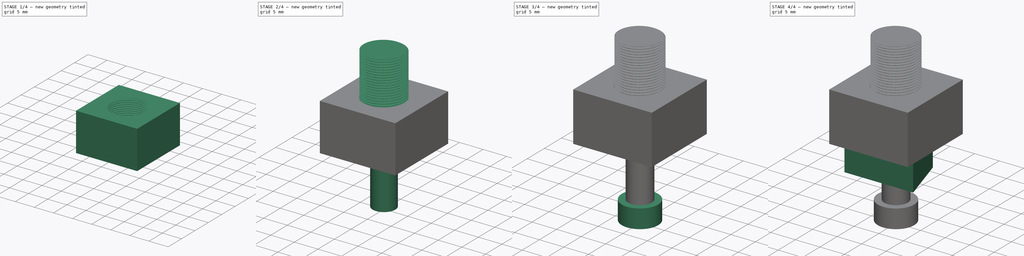
[diagram: build sequence overview — one tinted view per stage of 4, left to right]
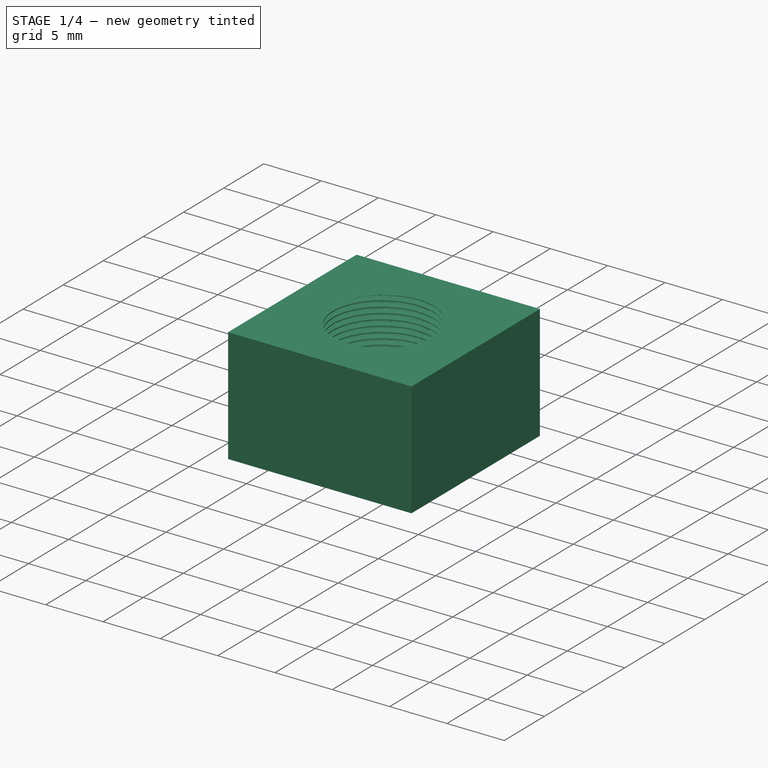
[diagram: stage 1 of 4 — iso view after this stage's code; geometry added in this stage tinted green]
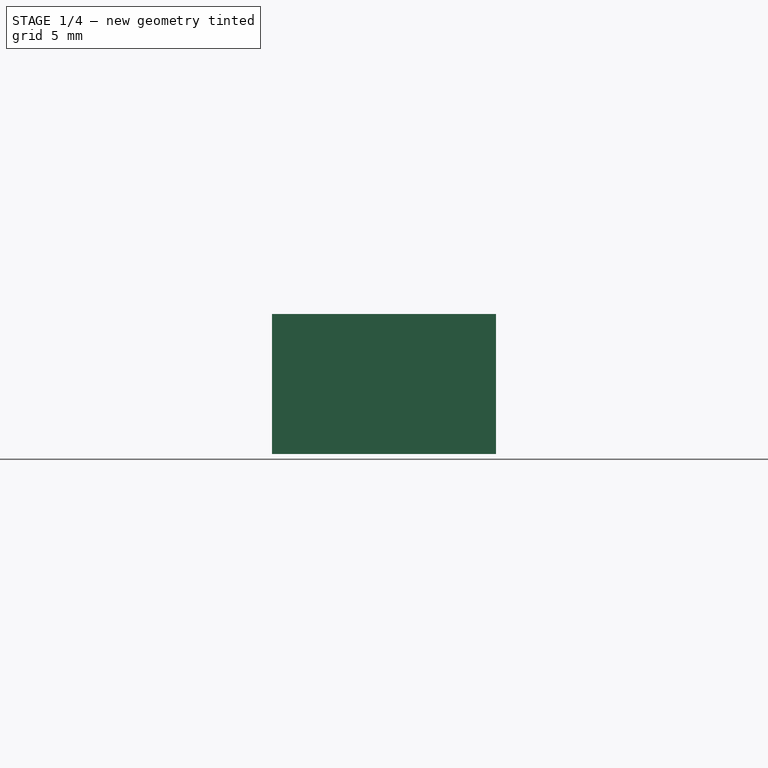
[diagram: stage 1 of 4 — front view after this stage's code; geometry added in this stage tinted green]
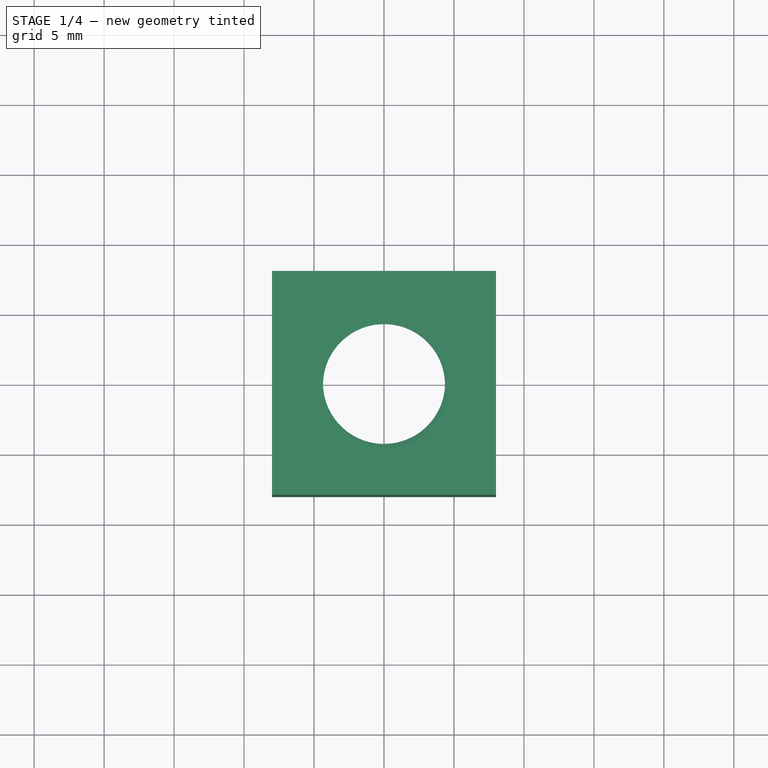
[diagram: stage 1 of 4 — top view after this stage's code; geometry added in this stage tinted green]
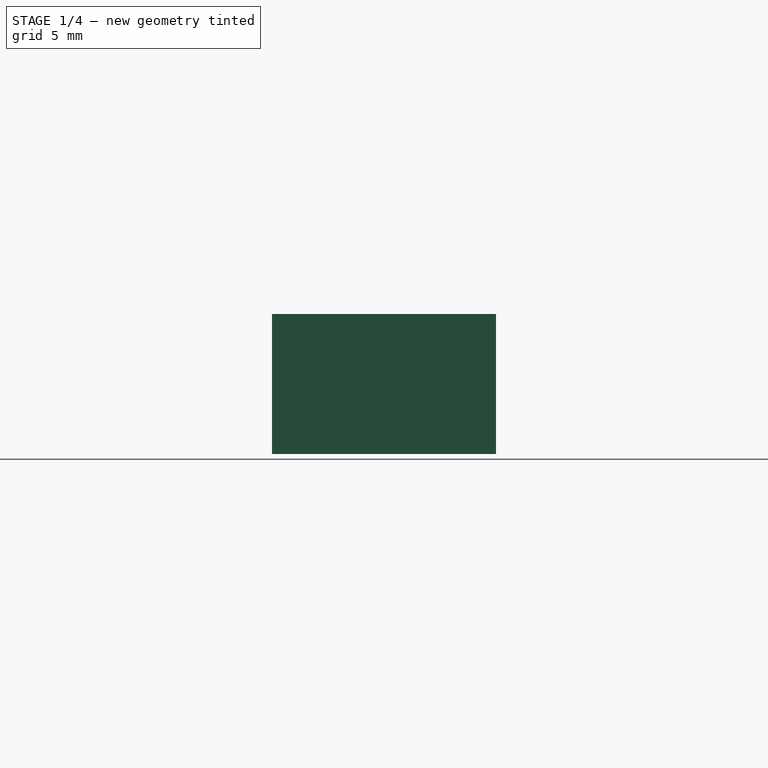
[diagram: stage 1 of 4 — right view after this stage's code; geometry added in this stage tinted green]
FCSTD DOCUMENT  (FreeCAD 2022.111R28429 (Git))
Label: E2 experiment
License: All rights reserved
LicenseURL: http://en.wikipedia.org/wiki/All_rights_reserved
objects: Sketcher::SketchObject×4, PartDesign::Pad×4, PartDesign::Body×2, Part::Part2DObjectPython×2, Part::Helix×2, Part::Sweep×2, PartDesign::Mirrored×1, PartDesign::FeatureBase×1, PartDesign::Chamfer×1, Part::Box×1, Part::Cut×1
note: 34 computed .brp shape members not serialized (recipe doc carries the construction recipe); baked Part::Feature solids carry a one-line shape summary decoded from their .brp

FEATURE [PartDesign::Body] Body001
  AutoGroupSolids = false
  BaseFeature = -> Sweep
  ExportMode = 0
  Group = -> [BaseFeature,Sketch005,Pad002,Sketch006,Pad003,Chamfer]
  Origin = -> Origin001
  Placement = pos=(-45,0,0) rot=(0,0,1;0rad)
  Tip = -> Chamfer
  TreeRank = 50
  _ExportChildren = -> [BaseFeature,Pad002,Pad003,Chamfer]
  _GroupVersion = 1
FEATURE [Part::Box] Box  label="Cube"
  AttacherType = Attacher::AttachEngine3D
  Height = 10
  Length = 16
  Placement = pos=(-8,-8,1.1) rot=(0,0,1;0rad)
  TreeRank = 70
  Width = 16
FEATURE [Part::Part2DObjectPython] VThreadProfile001  # Draft 2D object (typed FeaturePython)
  Area = 63.5134
  Closed = true
  Continuity = C3
  Instructions = Expand this with the ... button to view instructions | Sweep this object along a helix of the same pitch to produce your thread. | It is recommended to make the helix in the ThreadProfile workbench. | If there is an active Body the ThreadProfile object will be put into it.,If not it can be dragged and dropped into the body later. | If there is an active Body when the helix is made there will be made a ShapeBinder for it | For internal threads you will need to cut the Sweep object out of a cylinder, or if using Part Design sweep it as a Subtractive Pipe. | Always use Frenet mode | I have provided some presets, but it is possible there could be some errors.  Double check for mission critical applications. | Also, the tolerances might be different from what you wish to have.  I believe the internal minor diameters are all minimum and the external are all maximum.
  InternalOrExternal = 0
  MakeFace = true
  MinorDiameter = 8.75
  Parameterization = 1
  Pitch = 0.5
  Points = (719) [(4.37483,0.0382317,0),(4.37433,0.0764605,0),(4.3735,0.114683,0),(4.37233,0.152898,0),(4.37082,0.1911,0),(4.36899,0.229288,0),(4.36682,0.267458,0),+712 more]
  Presets = 0
  Quality = 1
  ThreadCount = 30
  TreeRank = 57
  Version = 1.69
  external_data = [-0.00235387,-0.00461052,-0.00677828,-0.00886428,-0.0108747,-0.0128149,-0.0146895,-0.0165028,-0.0182584,-0.0199597,-0.0216095,-0.0232106,-0.0247653,-0.0262759,-0.0277444,-0.0291725,-0.0305621,-0.0319145,-0.0332313,-0.0345138,-0.0357632,+698 more]
  internal_data = [0,0,0,0,0,0,0,0,0,0,0,0,0,0,0,0,0,0,0,0,0,0,0,0,0,0,0,0,0,0,0,0,0,0,0,0,0,0,0,0,0,0,0,0,0,0,0,0,0,0,0,0,0,0,0,0,0,0,0,0,0,0,0,0,0,0,0,0,0,0,0,0,0,0,0,0,0,0,0,0,0,0,0,0,0,0,0,0,0,0,0,0,0,0,0,0,0,0,0,0,0,0,0,0,0,0,0,0,0,0,0,0,0,0,0,0,0,0,0,0,+599 more]
  preset_names = <blob: 3959 chars omitted>
  presets_data = [0,0,0,2.20878,24.1173,24.6888,0.25,0.693,0.729,0.25,0.793,0.829,0.25,0.893,0.929,0.3,1.032,1.075,0.35,1.171,1.221,0.35,1.371,1.421,0.4,1.509,1.567,0.45,1.648,1.713,0.45,1.948,2.013,0.5,2.387,2.459,0.6,2.764,2.85,0.7,3.141,3.242,0.75,3.58,+712 more]
FEATURE [Part::Helix] Helix001
  Angle = 0
  AttacherType = Attacher::AttachEngine3D
  Height = 15
  LocalCoord = 0
  Pitch = 0.5
  Radius = 1
  Style = 0
  TreeRank = 58
  expr: Placement.Base.x = VThreadProfile001.Placement.Base.x
  expr: Placement.Base.y = VThreadProfile001.Placement.Base.y
  expr: Placement.Base.z = VThreadProfile001.Placement.Base.z
  expr: Placement.Rotation.Angle = VThreadProfile001.Placement.Rotation.Angle
  expr: Placement.Rotation.Axis.x = VThreadProfile001.Placement.Rotation.Axis.x
  expr: Placement.Rotation.Axis.y = VThreadProfile001.Placement.Rotation.Axis.y
  expr: Placement.Rotation.Axis.z = VThreadProfile001.Placement.Rotation.Axis.z
  expr: Height = VThreadProfile001.ThreadCount * VThreadProfile001.Pitch
  expr: Pitch = VThreadProfile001.Pitch
FEATURE [Part::Sweep] Sweep001
  Frenet = true
  Sections = -> [VThreadProfile001]
  Solid = true
  Spine = -> Helix001 [Edge1,Edge2,Edge3,Edge4,Edge5,Edge6,Edge7,Edge8,Edge9,Edge10,Edge11,Edge12,Edge13,Edge14,Edge15,Edge16,Edge17,Edge18,Edge19,Edge20,Edge21,Edge22,Edge23,Edge24,Edge25,Edge26,Edge27,Edge28,Edge29,Edge30]
  Transition = 1
  TreeRank = 71
FEATURE [Part::Cut] Cut
  Base = -> Box
  Refine = true
  Tool = -> Sweep001
  TreeRank = 72
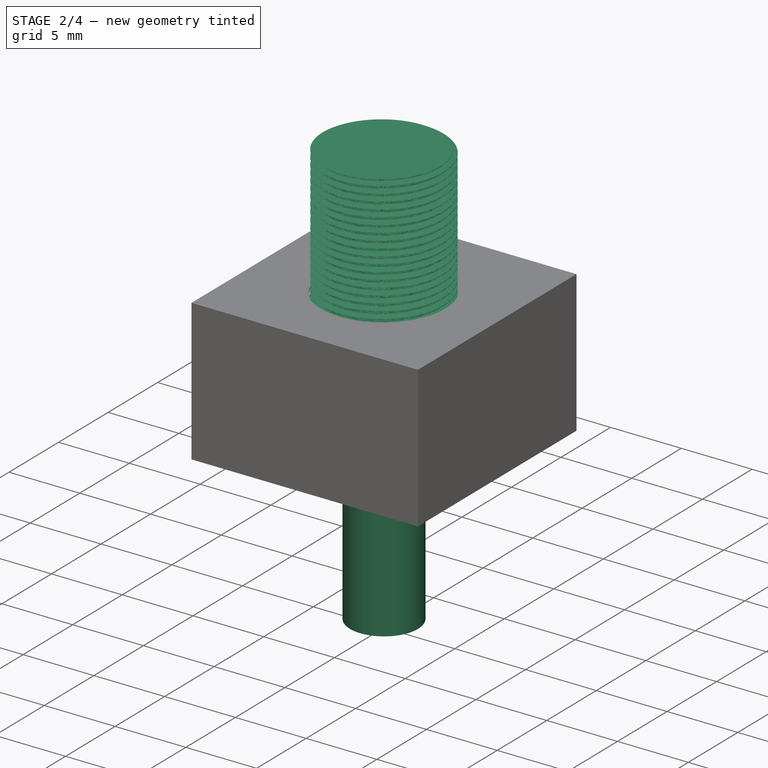
[diagram: stage 2 of 4 — iso view after this stage's code; geometry added in this stage tinted green]
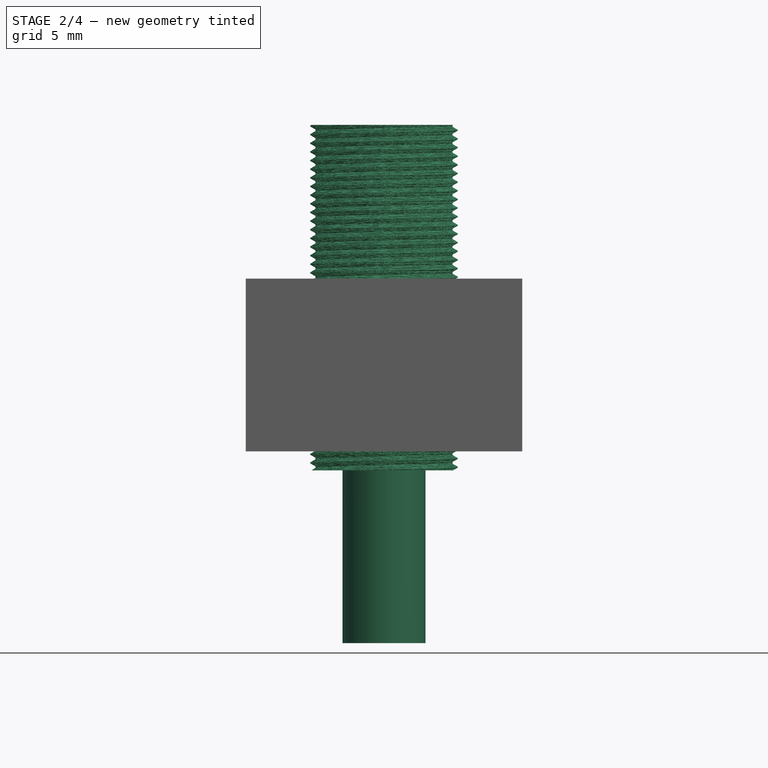
[diagram: stage 2 of 4 — front view after this stage's code; geometry added in this stage tinted green]
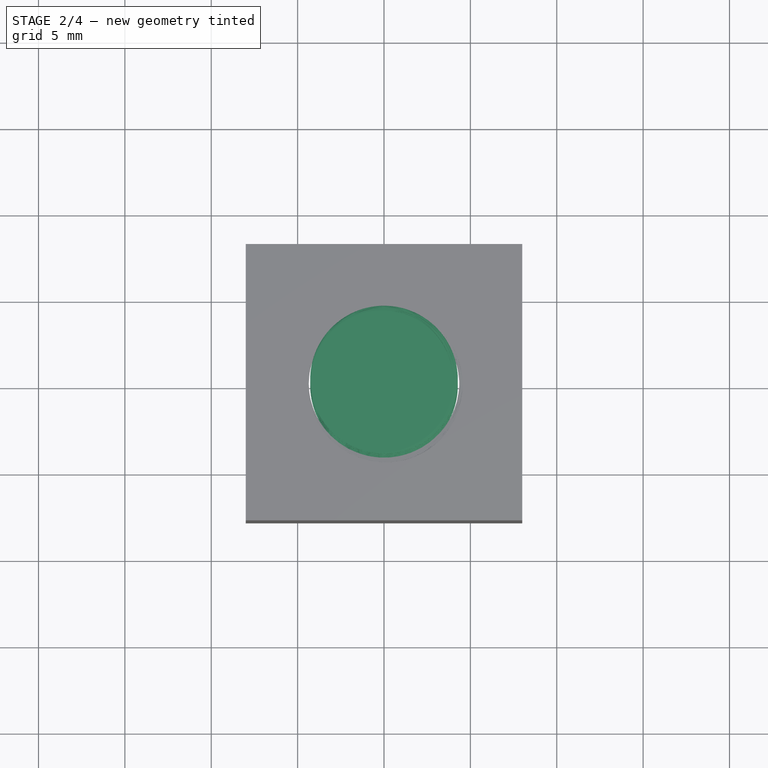
[diagram: stage 2 of 4 — top view after this stage's code; geometry added in this stage tinted green]
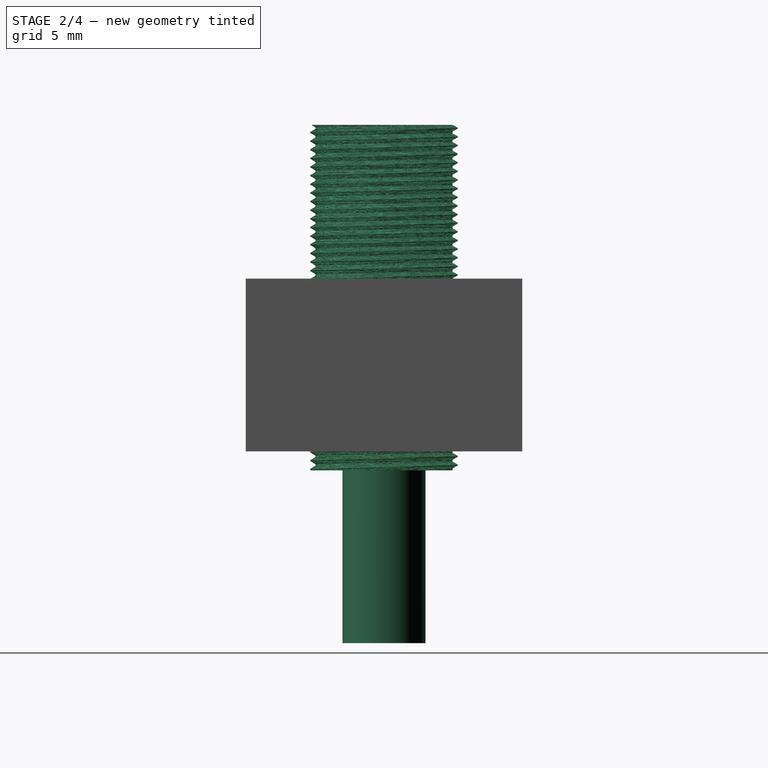
[diagram: stage 2 of 4 — right view after this stage's code; geometry added in this stage tinted green]
FEATURE [PartDesign::Body] Body
  AutoGroupSolids = false
  ExportMode = 0
  Group = -> [Sketch,Pad,Sketch004,Pad001,Mirrored]
  Origin = -> Origin
  Placement = pos=(-23,0,0) rot=(0,0,1;0rad)
  Tip = -> Mirrored
  TreeRank = 12
  _ExportChildren = -> [Pad,Pad001,Mirrored]
  _GroupVersion = 1
FEATURE [Part::Part2DObjectPython] VThreadProfile  # Draft 2D object (typed FeaturePython)
  Area = 53.1601
  Closed = true
  Continuity = C3
  Instructions = Expand this with the ... button to view instructions | Sweep this object along a helix of the same pitch to produce your thread. | It is recommended to make the helix in the ThreadProfile workbench. | If there is an active Body the ThreadProfile object will be put into it.,If not it can be dragged and dropped into the body later. | If there is an active Body when the helix is made there will be made a ShapeBinder for it | For internal threads you will need to cut the Sweep object out of a cylinder, or if using Part Design sweep it as a Subtractive Pipe. | Always use Frenet mode | I have provided some presets, but it is possible there could be some errors.  Double check for mission critical applications. | Also, the tolerances might be different from what you wish to have.  I believe the internal minor diameters are all minimum and the external are all maximum.
  InternalOrExternal = 1
  MakeFace = true
  MinorDiameter = 8
  Parameterization = 1
  Pitch = 0.5
  Points = (719) [(3.99867,0.0349444,0),(3.99708,0.0698664,0),(3.99524,0.104765,0),(3.99313,0.139637,0),(3.99075,0.174483,0),(3.9881,0.209299,0),(3.98519,0.244084,0),+712 more]
  Presets = 0
  Quality = 1
  ThreadCount = 40
  TreeRank = 35
  Version = 1.69
  external_data = [-0.00235387,-0.00461052,-0.00677828,-0.00886428,-0.0108747,-0.0128149,-0.0146895,-0.0165028,-0.0182584,-0.0199597,-0.0216095,-0.0232106,-0.0247653,-0.0262759,-0.0277444,-0.0291725,-0.0305621,-0.0319145,-0.0332313,-0.0345138,-0.0357632,+698 more]
  internal_data = [0,0,0,0,0,0,0,0,0,0,0,0,0,0,0,0,0,0,0,0,0,0,0,0,0,0,0,0,0,0,0,0,0,0,0,0,0,0,0,0,0,0,0,0,0,0,0,0,0,0,0,0,0,0,0,0,0,0,0,0,0,0,0,0,0,0,0,0,0,0,0,0,0,0,0,0,0,0,0,0,0,0,0,0,0,0,0,0,0,0,0,0,0,0,0,0,0,0,0,0,0,0,0,0,0,0,0,0,0,0,0,0,0,0,0,0,0,0,0,0,+599 more]
  preset_names = <blob: 3959 chars omitted>
  presets_data = [0,0,0,2.20878,24.1173,24.6888,0.25,0.693,0.729,0.25,0.793,0.829,0.25,0.893,0.929,0.3,1.032,1.075,0.35,1.171,1.221,0.35,1.371,1.421,0.4,1.509,1.567,0.45,1.648,1.713,0.45,1.948,2.013,0.5,2.387,2.459,0.6,2.764,2.85,0.7,3.141,3.242,0.75,3.58,+712 more]
FEATURE [Part::Helix] Helix
  Angle = 0
  AttacherType = Attacher::AttachEngine3D
  Height = 20
  LocalCoord = 0
  Pitch = 0.5
  Radius = 1
  Style = 0
  TreeRank = 36
  expr: Placement.Base.x = VThreadProfile.Placement.Base.x
  expr: Placement.Base.y = VThreadProfile.Placement.Base.y
  expr: Placement.Base.z = VThreadProfile.Placement.Base.z
  expr: Placement.Rotation.Angle = VThreadProfile.Placement.Rotation.Angle
  expr: Placement.Rotation.Axis.x = VThreadProfile.Placement.Rotation.Axis.x
  expr: Placement.Rotation.Axis.y = VThreadProfile.Placement.Rotation.Axis.y
  expr: Placement.Rotation.Axis.z = VThreadProfile.Placement.Rotation.Axis.z
  expr: Height = VThreadProfile.ThreadCount * VThreadProfile.Pitch
  expr: Pitch = VThreadProfile.Pitch
FEATURE [Part::Sweep] Sweep
  Frenet = true
  Sections = -> [VThreadProfile]
  Solid = true
  Spine = -> Helix [Edge1,Edge2,Edge3,Edge4,Edge5,Edge6,Edge7,Edge8,Edge9,Edge10,Edge11,Edge12,Edge13,Edge14,Edge15,Edge16,Edge17,Edge18,Edge19,Edge20,Edge21,Edge22,Edge23,Edge24,Edge25,Edge26,Edge27,Edge28,Edge29,Edge30,Edge31,Edge32,Edge33,Edge34,Edge35,Edge36,Edge37,Edge38,Edge39,Edge40]
  Transition = 1
  TreeRank = 37
FEATURE [PartDesign::FeatureBase] BaseFeature
  BaseFeature = -> Sweep
  NewSolid = false
  Suppress = false
  TreeRank = 47
FEATURE [Sketcher::SketchObject] Sketch005
  FullyConstrained = true
  MapMode = 5
  Support = -> [XY_Plane001]
  TreeRank = 51
  sketch-geometry (1):
    g0: Circle CenterX=0 CenterY=0 CenterZ=0 NormalX=0 NormalY=0 NormalZ=1 AngleXU=0 Radius=2.4
  constraints (2):
    c: Coincident(g0,g-1)
    c: Diameter(g0) = 4.8
FEATURE [PartDesign::Pad] Pad002
  BaseFeature = -> BaseFeature
  ClaimChildren = false
  Direction = (1,1,1)
  Fit = 0
  FitJoin = 0
  InnerFit = 0
  InnerFitJoin = 0
  InnerTaperAngle = 0
  InnerTaperAngleRev = 0
  Length = 10
  Length2 = 100
  Linearize = true
  NewSolid = false
  Profile = -> Sketch005
  Refine = true
  Reversed = true
  Suppress = false
  TreeRank = 52
  Type = 0
  _ProfileBasedVersion = 1
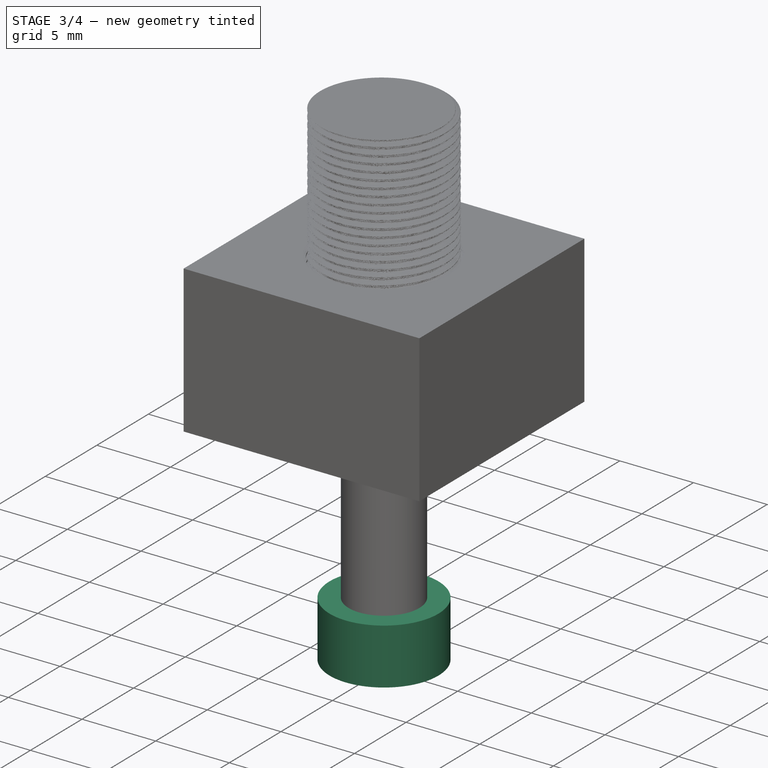
[diagram: stage 3 of 4 — iso view after this stage's code; geometry added in this stage tinted green]
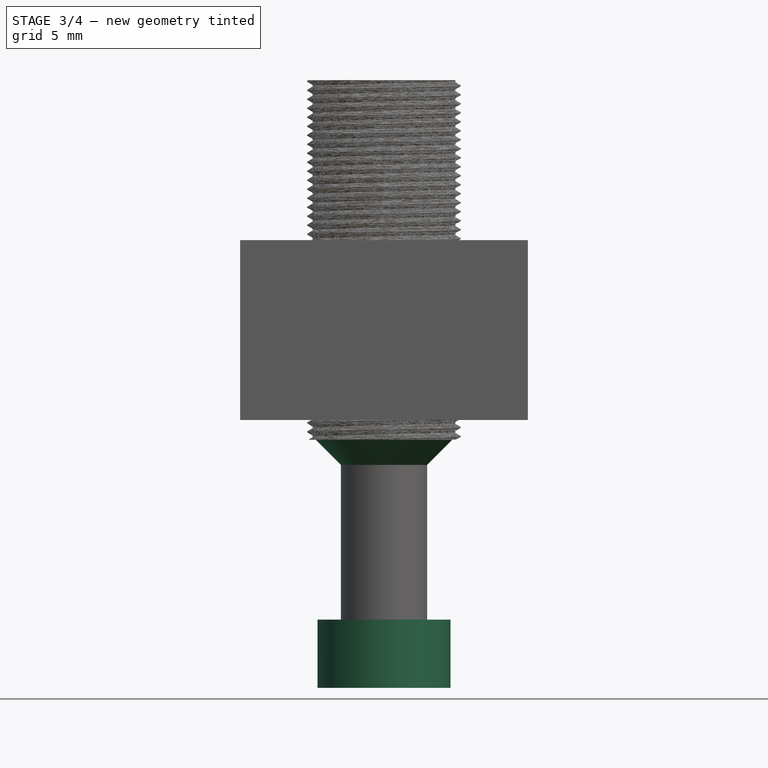
[diagram: stage 3 of 4 — front view after this stage's code; geometry added in this stage tinted green]
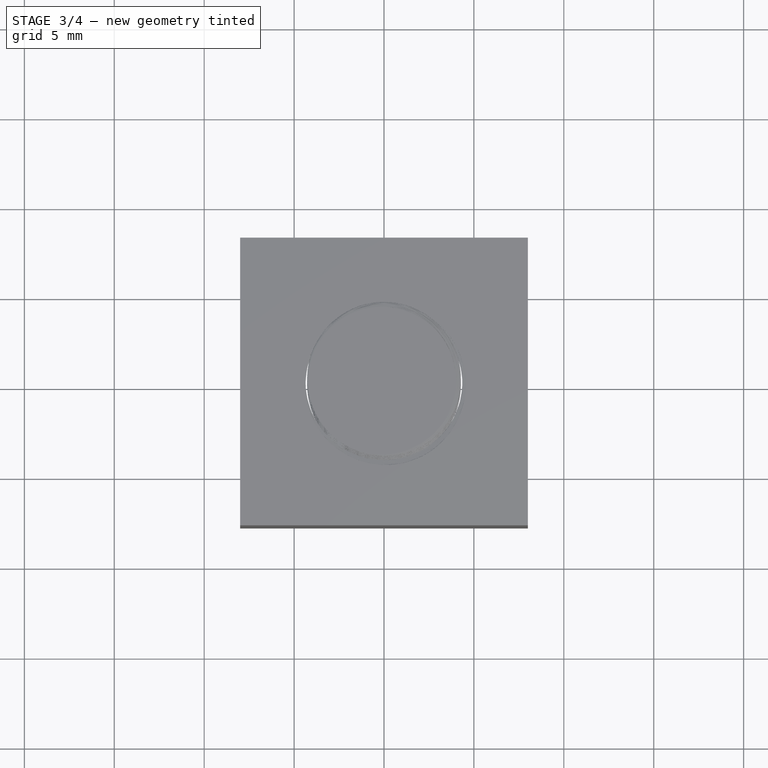
[diagram: stage 3 of 4 — top view after this stage's code; geometry added in this stage tinted green]
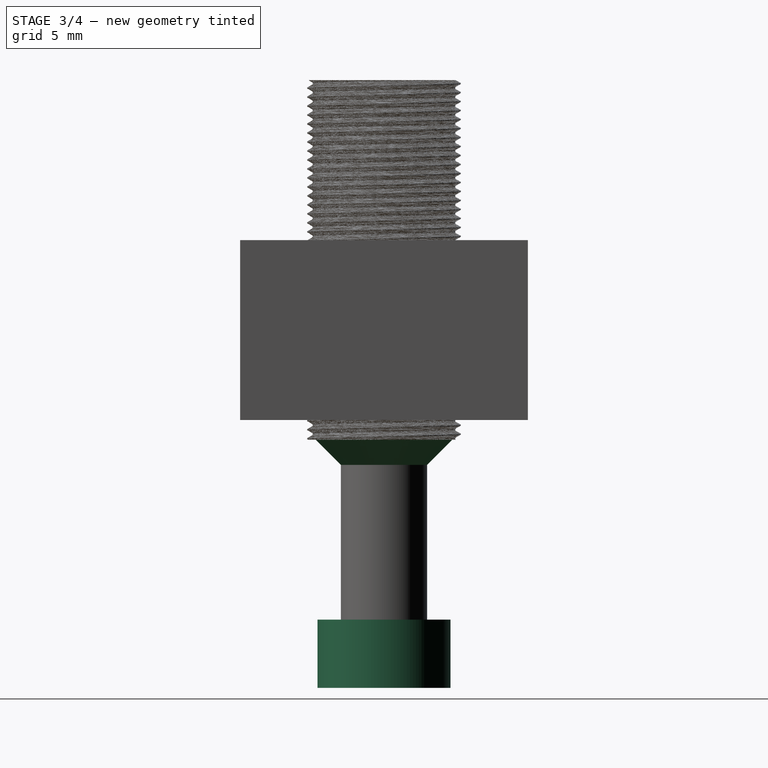
[diagram: stage 3 of 4 — right view after this stage's code; geometry added in this stage tinted green]
FEATURE [Sketcher::SketchObject] Sketch006
  FullyConstrained = true
  MapMode = 5
  Placement = pos=(0,0,-10) rot=(1,0,0;3.14159rad)
  Support = -> [Pad002]
  TreeRank = 53
  sketch-geometry (1):
    g0: Circle CenterX=0 CenterY=0 CenterZ=0 NormalX=0 NormalY=0 NormalZ=1 AngleXU=0 Radius=3.7
  constraints (2):
    c: Coincident(g0,g-1)
    c: Diameter(g0) = 7.4
FEATURE [PartDesign::Pad] Pad003
  BaseFeature = -> Pad002
  ClaimChildren = false
  Direction = (1,1,1)
  Fit = 0
  FitJoin = 0
  InnerFit = 0
  InnerFitJoin = 0
  InnerTaperAngle = 0
  InnerTaperAngleRev = 0
  Length = 3.8
  Length2 = 100
  Linearize = true
  NewSolid = false
  Profile = -> Sketch006
  Refine = true
  Suppress = false
  TreeRank = 54
  Type = 0
  _ProfileBasedVersion = 1
FEATURE [PartDesign::Chamfer] Chamfer
  Angle = 45
  Base = -> Pad003 [Edge6]
  BaseFeature = -> Pad003
  ChamferType = 0
  FlipDirection = false
  NewSolid = false
  Refine = true
  Size = 1.4
  Size2 = 1
  SupportTransform = false
  Suppress = false
  TreeRank = 55
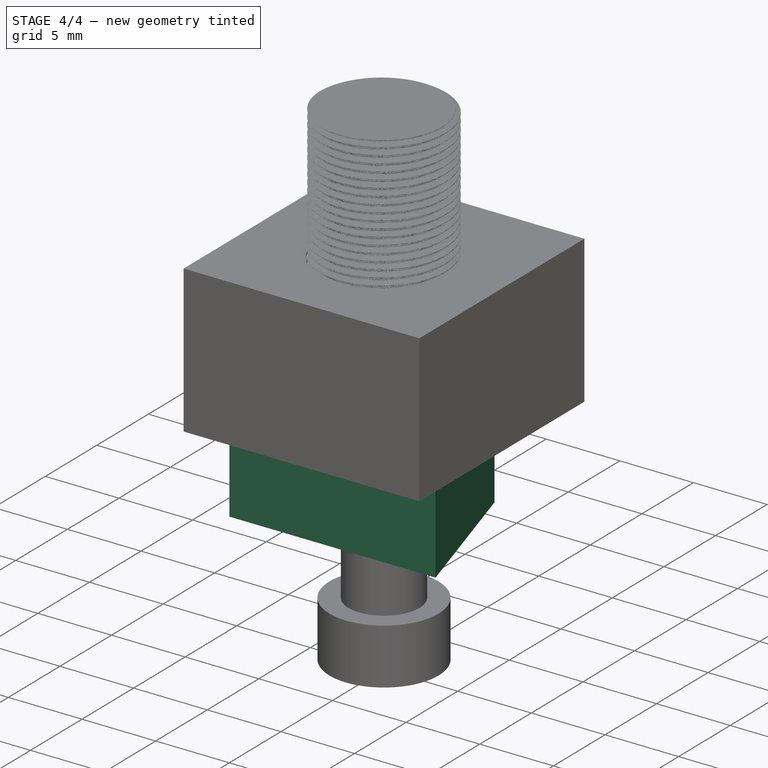
[diagram: stage 4 of 4 — iso view after this stage's code; geometry added in this stage tinted green]
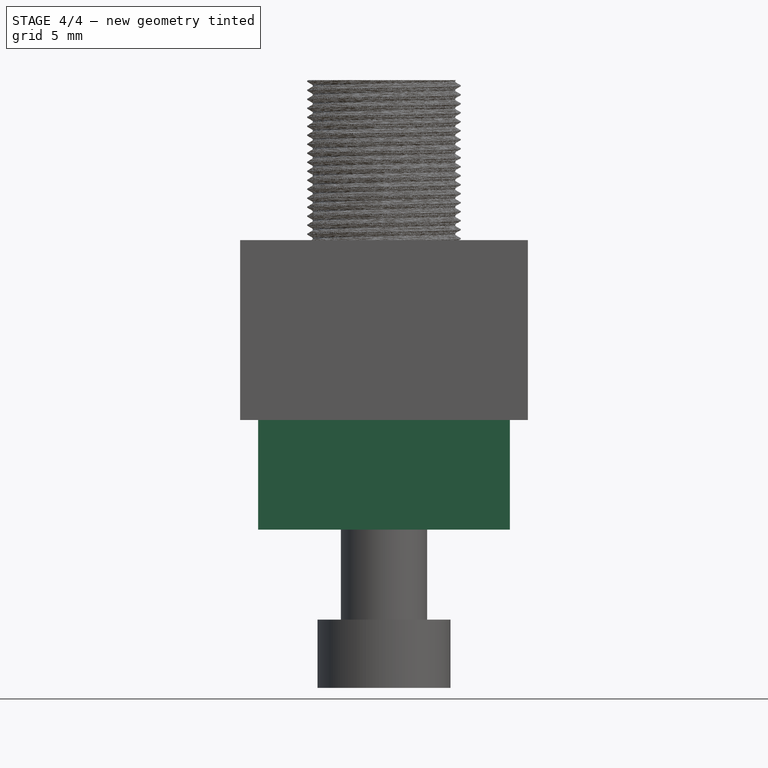
[diagram: stage 4 of 4 — front view after this stage's code; geometry added in this stage tinted green]
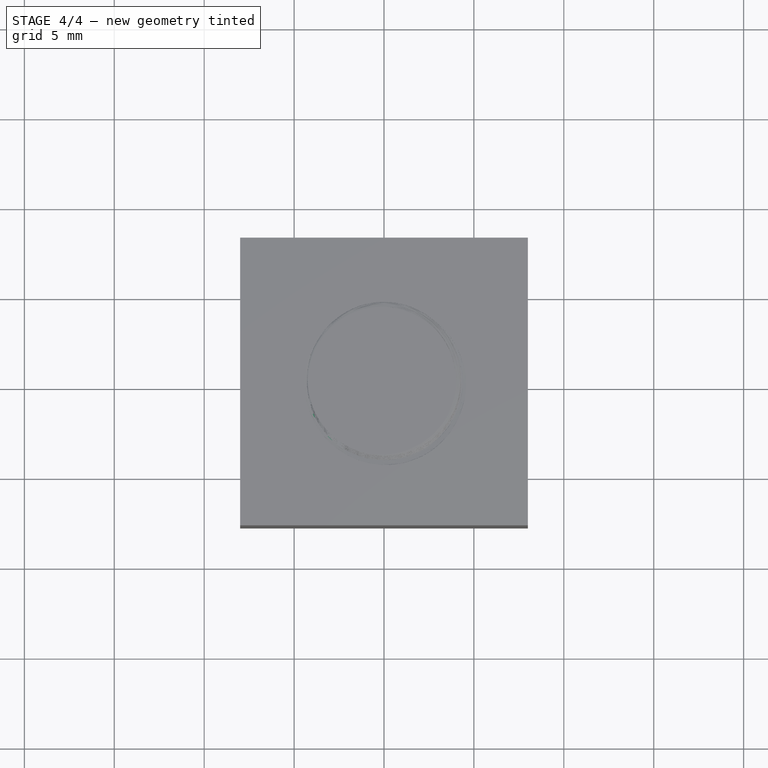
[diagram: stage 4 of 4 — top view after this stage's code; geometry added in this stage tinted green]
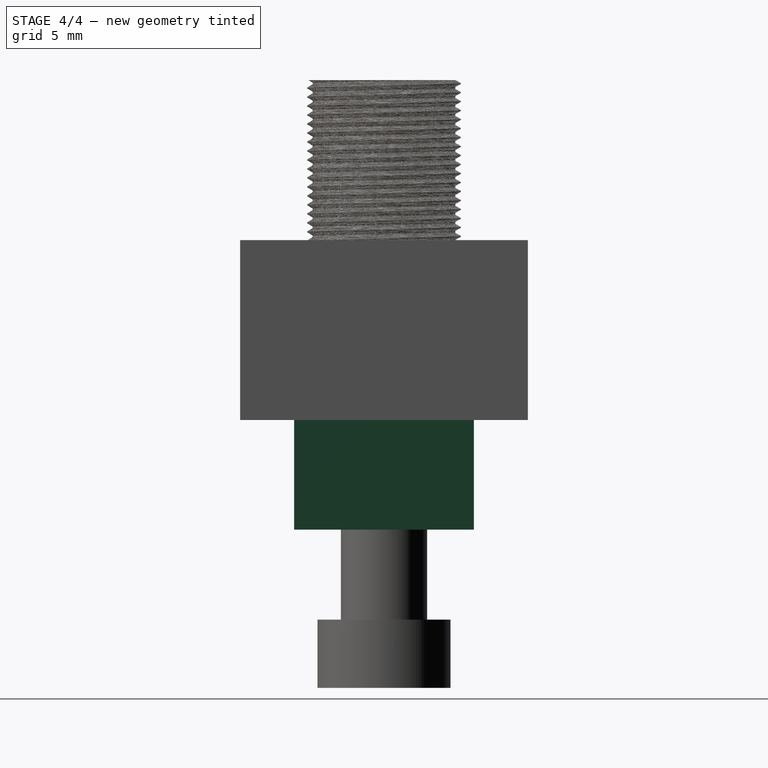
[diagram: stage 4 of 4 — right view after this stage's code; geometry added in this stage tinted green]
FEATURE [Sketcher::SketchObject] Sketch
  FullyConstrained = false
  MapMode = 5
  Support = -> [XY_Plane]
  TreeRank = 13
  sketch-geometry (11):
    g0: LineSegment StartX=-7 StartY=-4.99999 StartZ=0 EndX=-4 EndY=5.00001 EndZ=0
    g1: LineSegment StartX=4 StartY=5.00001 StartZ=0 EndX=7 EndY=-4.99999 EndZ=0
    g2: LineSegment StartX=7 StartY=-4.99999 StartZ=0 EndX=-7 EndY=-4.99999 EndZ=0
    g3: LineSegment [constr] StartX=0 StartY=-9e-16 StartZ=0 EndX=0 EndY=4.99999 EndZ=0
    g4: LineSegment [constr] StartX=0 StartY=-9e-16 StartZ=0 EndX=0 EndY=-4.99999 EndZ=0
    g5: ArcOfCircle CenterX=0 CenterY=-9e-16 CenterZ=0 NormalX=0 NormalY=0 NormalZ=1 AngleXU=0 Radius=3.79999 StartAngle=3.14159 EndAngle=6.28319
    g6: GeomPoint [constr] X=0 Y=-3.79999 Z=0
    g7: LineSegment StartX=-4 StartY=5.00001 StartZ=0 EndX=-3.79999 EndY=5.00001 EndZ=0
    g8: LineSegment StartX=-3.79999 StartY=5.00001 StartZ=0 EndX=-3.79999 EndY=-9e-16 EndZ=0
    g9: LineSegment StartX=4 StartY=5.00001 StartZ=0 EndX=3.79999 EndY=5.00001 EndZ=0
    g10: LineSegment StartX=3.79999 StartY=5.00001 StartZ=0 EndX=3.79999 EndY=-9e-16 EndZ=0
  constraints (30):
    c: Coincident(g1,g2)
    c: Coincident(g2,g0)
    c: DistanceX(g2,g2) = 14
    c: DistanceX(g0,g1) = 8
    c: DistanceY(g1,g1) = 10
    c: Symmetric(g1,g0,g-2)
    c: Symmetric(g1,g0,g-2)
    c: Coincident(g3,g-1)
    c: Vertical(g3)
    c: Coincident(g4,g3)
    c: Vertical(g4)
    c: PointOnObject(g4,g2)
    c: Equal(g3,g4)
    c: Coincident(g5,g3)
    c: PointOnObject(g6,g5)
    c: Vertical(g6,g5)
    c: DistanceY(g4,g6) = 1.2
    c: Diameter(g5) = 7.59998
    c: Coincident(g0,g7)
    c: Horizontal(g7)
    c: Coincident(g7,g8)
    c: Coincident(g1,g9)
    c: Horizontal(g9)
    c: Coincident(g9,g10)
    c: Vertical(g10)
    c: Vertical(g8)
    c: Coincident(g5,g8)
    c: Coincident(g5,g10)
    c: Horizontal(g5,g5)
    c: Horizontal(g5,g5)
FEATURE [PartDesign::Pad] Pad
  ClaimChildren = false
  Direction = (1,1,1)
  Fit = 0
  FitJoin = 0
  InnerFit = 0
  InnerFitJoin = 0
  InnerTaperAngle = 0
  InnerTaperAngleRev = 0
  Length = 4
  Length2 = 100
  Linearize = true
  Midplane = true
  NewSolid = false
  Profile = -> Sketch
  Refine = true
  Suppress = false
  TreeRank = 14
  Type = 0
  _ProfileBasedVersion = 1
FEATURE [Sketcher::SketchObject] Sketch004
  ExternalGeometry = -> [Pad]
  FullyConstrained = true
  MapMode = 5
  Placement = pos=(0,0,2) rot=(0,0,1;0rad)
  Support = -> [Pad]
  TreeRank = 32
  sketch-geometry (8):
    g0: ArcOfCircle CenterX=0 CenterY=0 CenterZ=0 NormalX=0 NormalY=0 NormalZ=1 AngleXU=0 Radius=2.5 StartAngle=3.14159 EndAngle=6.28319
    g1: LineSegment StartX=-4 StartY=5.00001 StartZ=0 EndX=-2.5 EndY=5.00001 EndZ=0
    g2: LineSegment StartX=-2.5 StartY=5.00001 StartZ=0 EndX=-2.5 EndY=0 EndZ=0
    g3: LineSegment StartX=4 StartY=5.00001 StartZ=0 EndX=2.5 EndY=5.00001 EndZ=0
    g4: LineSegment StartX=2.5 StartY=5.00001 StartZ=0 EndX=2.5 EndY=-9e-16 EndZ=0
    g5: LineSegment StartX=4 StartY=5.00001 StartZ=0 EndX=7 EndY=-4.99999 EndZ=0
    g6: LineSegment StartX=7 StartY=-4.99999 StartZ=0 EndX=-7 EndY=-4.99999 EndZ=0
    g7: LineSegment StartX=-7 StartY=-4.99999 StartZ=0 EndX=-4 EndY=5.00001 EndZ=0
  constraints (20):
    c: Coincident(g0,g-1)
    c: PointOnObject(g0,g-1)
    c: PointOnObject(g0,g-1)
    c: Diameter(g0) = 5
    c: Coincident(g1,g-3)
    c: Horizontal(g1)
    c: Coincident(g2,g1)
    c: Coincident(g2,g0)
    c: Vertical(g2)
    c: Coincident(g3,g-4)
    c: Horizontal(g3)
    c: Coincident(g4,g3)
    c: Coincident(g4,g0)
    c: Vertical(g4)
    c: Coincident(g5,g3)
    c: Coincident(g5,g-5)
    c: Coincident(g6,g5)
    c: Coincident(g6,g-5)
    c: Coincident(g7,g6)
    c: Coincident(g7,g1)
FEATURE [PartDesign::Pad] Pad001
  BaseFeature = -> Pad
  ClaimChildren = false
  Direction = (1,1,1)
  Fit = 0
  FitJoin = 0
  InnerFit = 0
  InnerFitJoin = 0
  InnerTaperAngle = 0
  InnerTaperAngleRev = 0
  Length = 3
  Length2 = 100
  Linearize = true
  NewSolid = false
  Profile = -> Sketch004
  Refine = true
  Suppress = false
  TreeRank = 33
  Type = 0
  _ProfileBasedVersion = 1
FEATURE [PartDesign::Mirrored] Mirrored
  BaseFeature = -> Pad001
  CopyShape = false
  MirrorPlane = -> XY_Plane
  NewSolid = false
  OriginalSubs = -> [Pad001]
  Originals = -> [Pad001]
  ParallelTransform = true
  Refine = true
  SubTransform = true
  Suppress = false
  TreeRank = 34
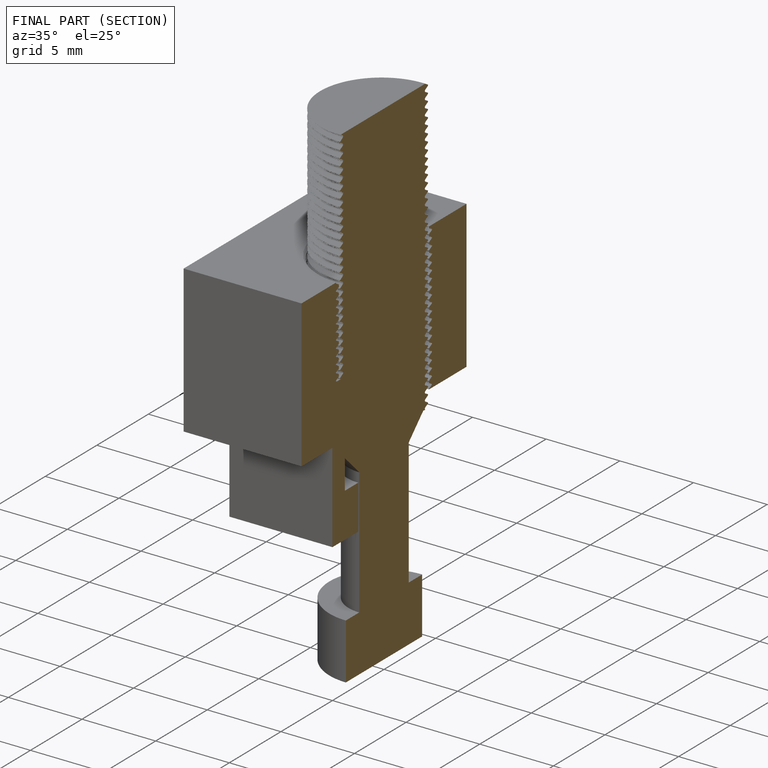
[diagram: finished part — half-section view (interior)]
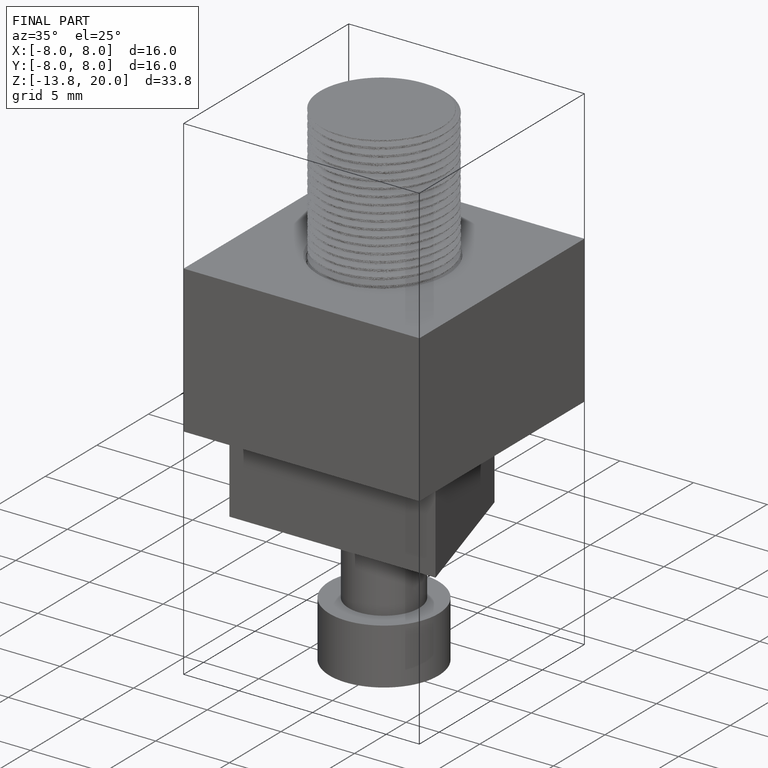
[diagram: finished part — iso view with bounding-box wireframe]
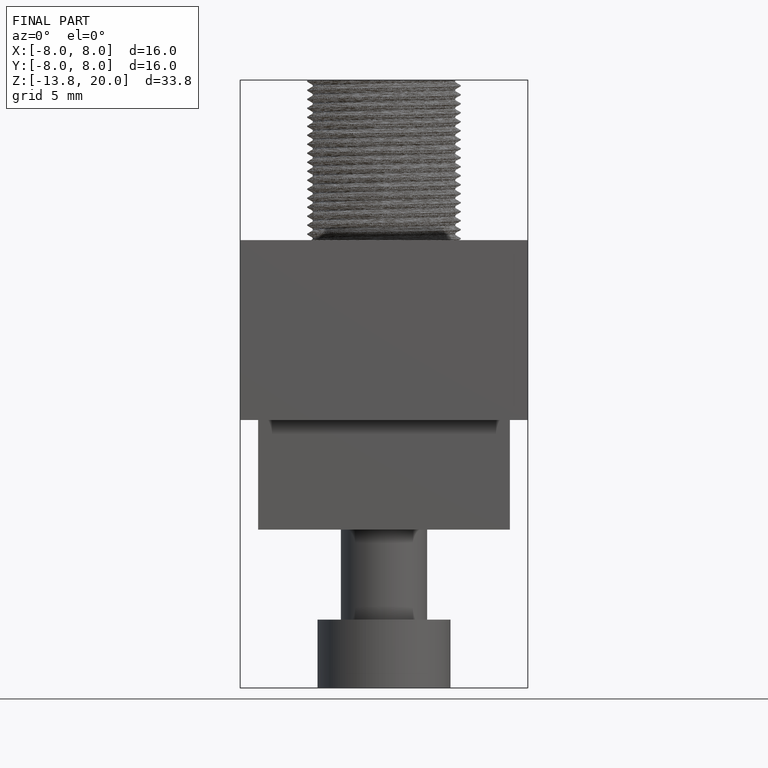
[diagram: finished part — front view with bounding-box wireframe]
